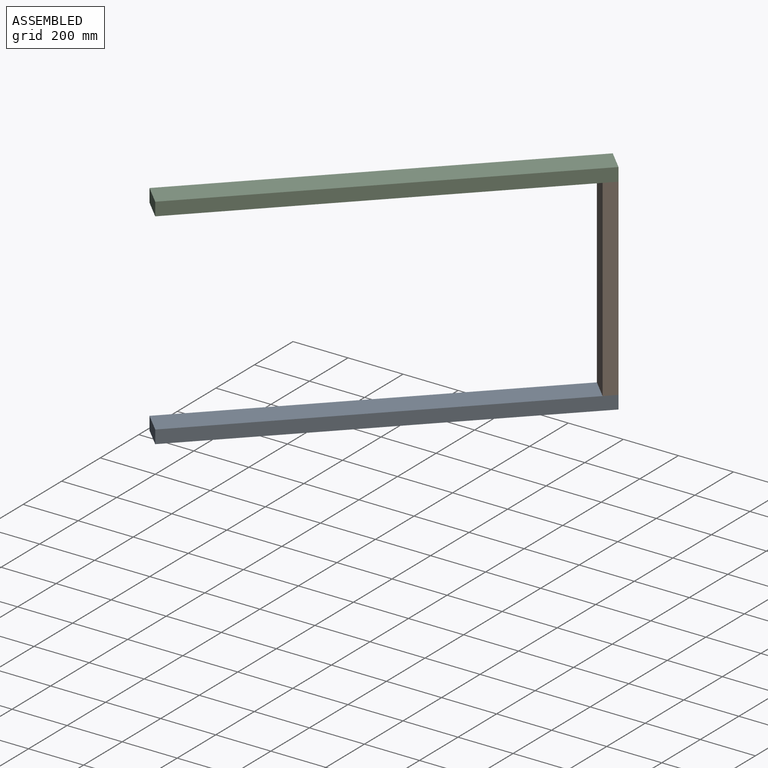
[diagram: assembled view]
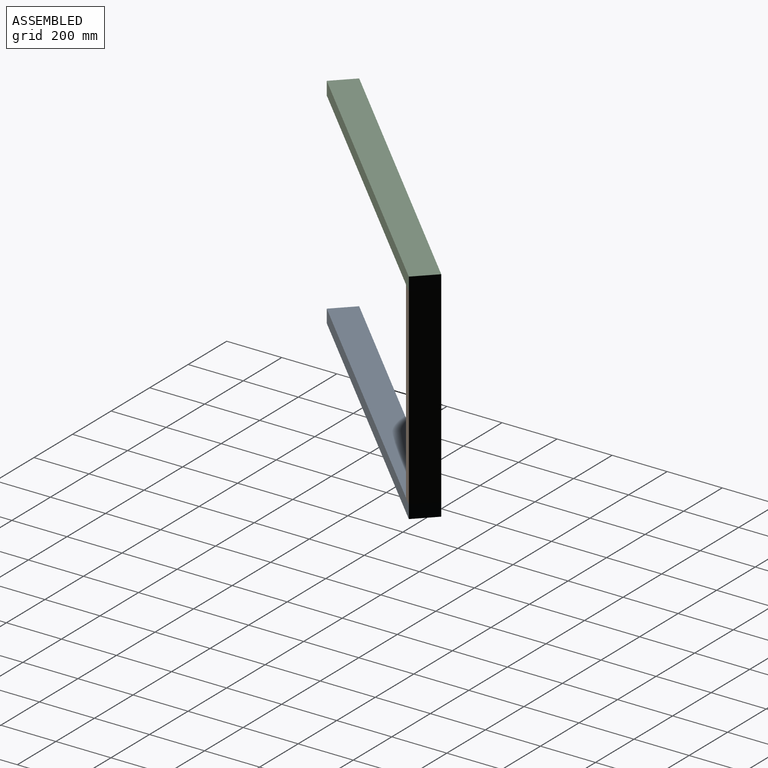
[diagram: assembled view, second angle]
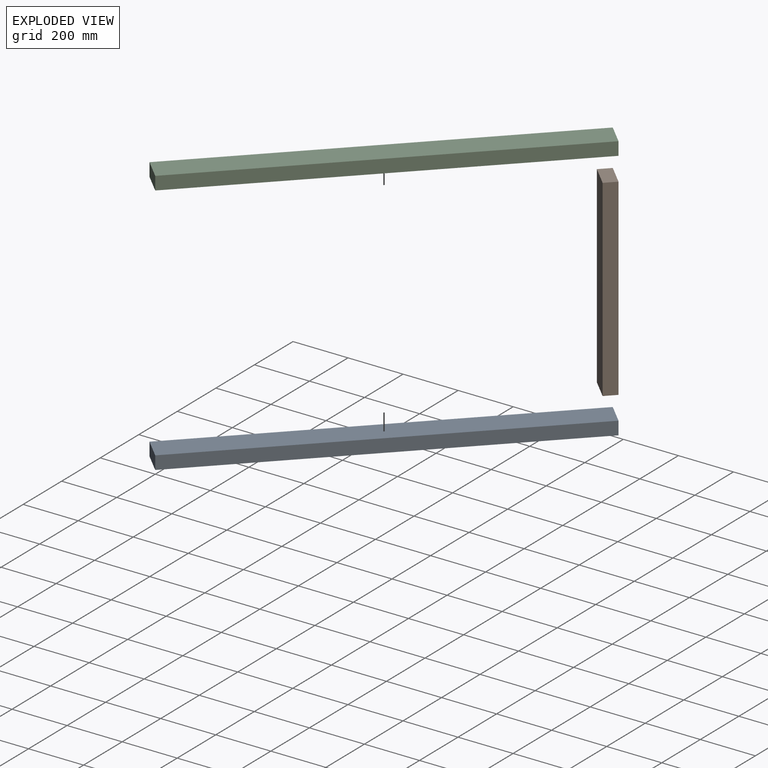
[diagram: exploded view]
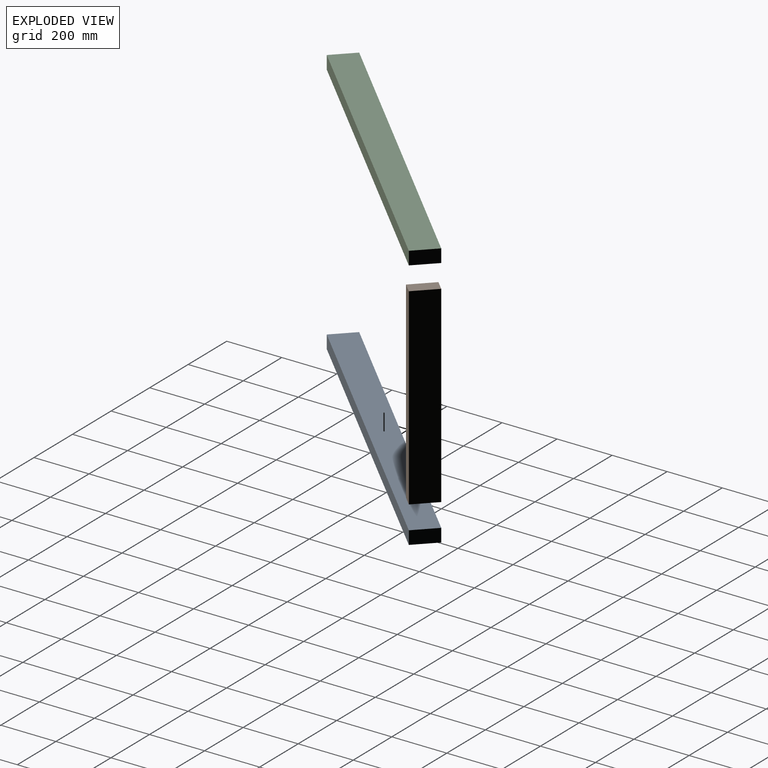
[diagram: exploded view, second angle]
ASSEMBLY  parts=3 mates=2
PART A: 6 faces, bbox 98x1400x48 mm
  f0: plane 1400x98mm, normal (0,0,1), area 137200mm2, adj f1,f3,f4,f5
  f1: plane 1400x48mm, normal (-1,0,0), area 67200mm2, adj f0,f2,f4,f5
  f2: plane 1400x98mm, normal (0,0,-1), area 137200mm2, adj f1,f3,f4,f5
  f3: plane 1400x48mm, normal (1,0,0), area 67200mm2, adj f0,f2,f4,f5
  f4: plane 98x48mm, normal (0,-1,0), area 4704mm2, adj f0,f1,f2,f3
  f5: plane 98x48mm, normal (0,1,0), area 4704mm2, adj f0,f1,f2,f3
PART B: 6 faces, bbox 98x700x48 mm
  f0: plane 700x98mm, normal (0,0,1), area 68600mm2, adj f1,f3,f4,f5
  f1: plane 700x48mm, normal (-1,0,0), area 33600mm2, adj f0,f2,f4,f5
  f2: plane 700x98mm, normal (0,0,-1), area 68600mm2, adj f1,f3,f4,f5
  f3: plane 700x48mm, normal (1,0,0), area 33600mm2, adj f0,f2,f4,f5
  f4: plane 98x48mm, normal (0,-1,0), area 4704mm2, adj f0,f1,f2,f3
  f5: plane 98x48mm, normal (0,1,0), area 4704mm2, adj f0,f1,f2,f3
PART C: same geometry as A
PLACE A rot(axis=(0,0,-1),45deg) t=(2657.55,2221.23,-406.78)mm
PLACE B rot(axis=(-0.28,-0.68,0.68),148.6deg) t=(2640.59,2204.25,-382.78)mm fixed
PLACE C rot(axis=(-0.38,-0.92,0),180deg) t=(2657.55,2221.23,341.22)mm
MATE fastened A.f0 <-> B.f5  axis (0,0,1) through (2640.59,2204.25,-382.78)mm
MATE fastened C.f0 <-> B.f4  axis (0,0,-1) through (2640.59,2204.25,317.22)mm
